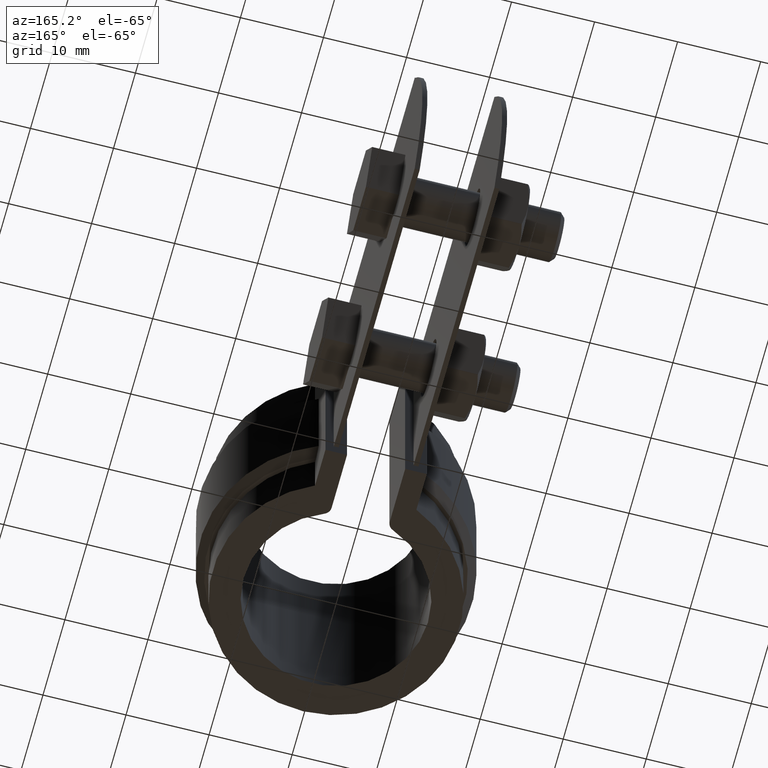
[diagram: clean part render]
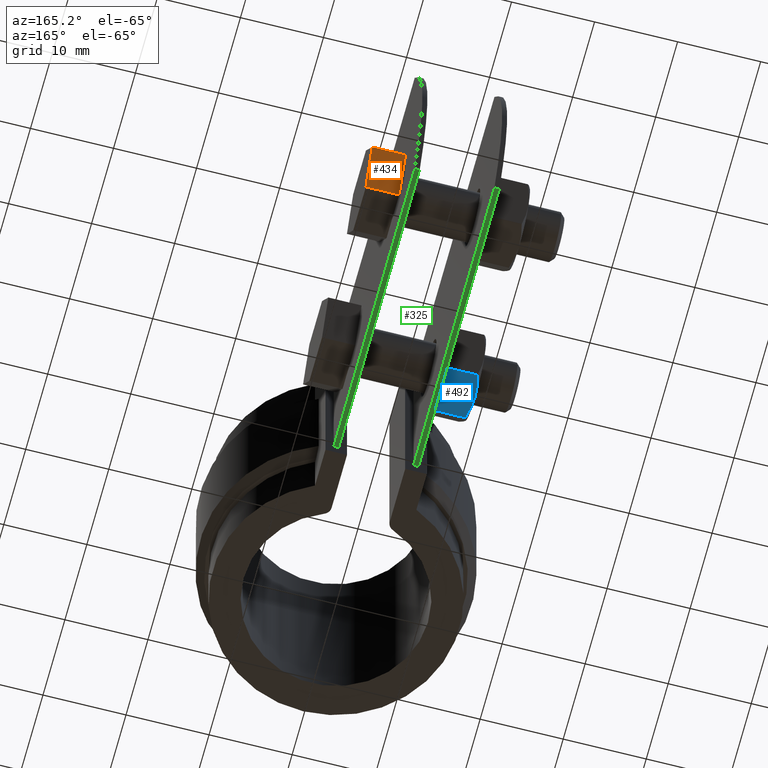
[diagram: same view with three faces highlighted in distinct colors, each labeled with its STEP entity id]
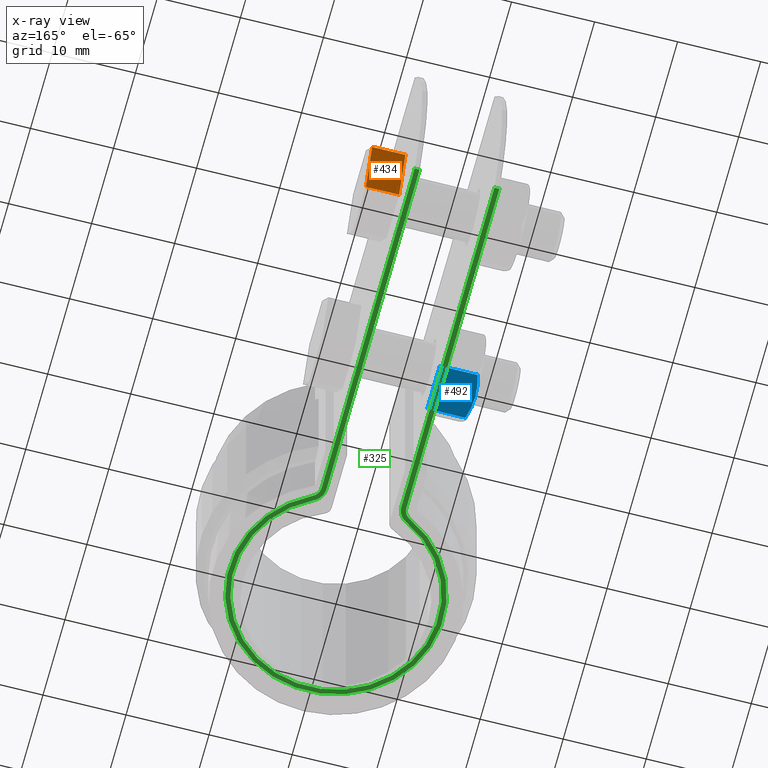
[diagram: x-ray of the same camera — body ghosted, the three highlighted faces saturated]
A machine part, auxiliary view with three faces highlighted in distinct colors.
The next image is the same camera in x-ray (body ghosted, the three faces saturated) — at least one of them is partly hidden behind the body in this view.
Their STEP definitions:

[orange] entity #434 — the highlighted planar face has unit normal (-0, -0.866, 0.5).
#434 = ADVANCED_FACE( '', ( #755 ), #756, .F. );
#755 = FACE_OUTER_BOUND( '', #1541, .T. );
#756 = PLANE( '', #1542 );
#1541 = EDGE_LOOP( '', ( #3654, #3655, #3656, #3657 ) );
#1542 = AXIS2_PLACEMENT_3D( '', #3658, #3659, #3660 );
#3654 = ORIENTED_EDGE( '', *, *, #4486, .T. );
#3655 = ORIENTED_EDGE( '', *, *, #4493, .F. );
#3656 = ORIENTED_EDGE( '', *, *, #4494, .F. );
#3657 = ORIENTED_EDGE( '', *, *, #4495, .T. );
#3658 = CARTESIAN_POINT( '', ( 9.10000000000012, 48.0847660081835, -17.5000000000001 ) );
#3659 = DIRECTION( '', ( -1.40129846432480E-045, -0.866025403784439, 0.500000000000000 ) );
#3660 = DIRECTION( '', ( -4.85493661350449E-060, -0.500000000000000, -0.866025403784438 ) );
#4486 = EDGE_CURVE( '', #5210, #5211, #5212, .T. );
#4493 = EDGE_CURVE( '', #5224, #5211, #5225, .T. );
#4494 = EDGE_CURVE( '', #5226, #5224, #5227, .T. );
#4495 = EDGE_CURVE( '', #5226, #5210, #5228, .T. );
#5210 = VERTEX_POINT( '', #7522 );
#5211 = VERTEX_POINT( '', #7523 );
#5212 = LINE( '', #7524, #7525 );
#5224 = VERTEX_POINT( '', #7542 );
#5225 = LINE( '', #7543, #7544 );
#5226 = VERTEX_POINT( '', #7545 );
#5227 = LINE( '', #7546, #7547 );
#5228 = LINE( '', #7548, #7549 );
#7522 = CARTESIAN_POINT( '', ( 5.10000000000000, 48.0847660081835, -17.5000000000001 ) );
#7523 = CARTESIAN_POINT( '', ( 5.10000000000000, 50.9715173541317, -12.4999999999999 ) );
#7524 = CARTESIAN_POINT( '', ( 5.10000000000000, 48.0847660081835, -17.5000000000001 ) );
#7525 = VECTOR( '', #8376, 1000.00000000001 );
#7542 = CARTESIAN_POINT( '', ( 9.10000000000012, 50.9715173541317, -12.4999999999999 ) );
#7543 = CARTESIAN_POINT( '', ( 9.10000000000012, 50.9715173541317, -12.4999999999999 ) );
#7544 = VECTOR( '', #8385, 1000.00000000000 );
#7545 = CARTESIAN_POINT( '', ( 9.10000000000012, 48.0847660081835, -17.5000000000001 ) );
#7546 = CARTESIAN_POINT( '', ( 9.10000000000012, 48.0847660081835, -17.5000000000001 ) );
#7547 = VECTOR( '', #8386, 1000.00000000001 );
#7548 = CARTESIAN_POINT( '', ( 9.10000000000012, 48.0847660081835, -17.5000000000001 ) );
#7549 = VECTOR( '', #8387, 1000.00000000000 );
#8376 = DIRECTION( '', ( 4.77714892253123E-060, 0.500000000000000, 0.866025403784438 ) );
#8385 = DIRECTION( '', ( -1.00000000000000, 1.21356006838940E-045, -7.00649232162396E-046 ) );
#8386 = DIRECTION( '', ( 4.77714892253123E-060, 0.500000000000000, 0.866025403784438 ) );
#8387 = DIRECTION( '', ( -1.00000000000000, 1.21356006838940E-045, -7.00649232162396E-046 ) );

[blue] entity #492 — the highlighted planar face has unit normal (0, 0, 1).
#492 = ADVANCED_FACE( '', ( #883 ), #884, .F. );
#883 = FACE_OUTER_BOUND( '', #1669, .T. );
#884 = PLANE( '', #1670 );
#1669 = EDGE_LOOP( '', ( #4081, #4082, #4083, #4084, #4085 ) );
#1670 = AXIS2_PLACEMENT_3D( '', #4086, #4087, #4088 );
#4081 = ORIENTED_EDGE( '', *, *, #4624, .F. );
#4082 = ORIENTED_EDGE( '', *, *, #4625, .F. );
#4083 = ORIENTED_EDGE( '', *, *, #4623, .F. );
#4084 = ORIENTED_EDGE( '', *, *, #4603, .F. );
#4085 = ORIENTED_EDGE( '', *, *, #4626, .F. );
#4086 = CARTESIAN_POINT( '', ( -5.10000000000001, 22.3112633162872, -17.5000000000000 ) );
#4087 = DIRECTION( '', ( 0.000000000000000, 0.000000000000000, 1.00000000000000 ) );
#4088 = DIRECTION( '', ( 1.00000000000000, 0.000000000000000, 0.000000000000000 ) );
#4603 = EDGE_CURVE( '', #5409, #5411, #5412, .T. );
#4623 = EDGE_CURVE( '', #5411, #5439, #5441, .F. );
#4624 = EDGE_CURVE( '', #5379, #5442, #5443, .F. );
#4625 = EDGE_CURVE( '', #5439, #5379, #5444, .F. );
#4626 = EDGE_CURVE( '', #5442, #5409, #5445, .T. );
#5379 = VERTEX_POINT( '', #7817 );
#5409 = VERTEX_POINT( '', #7862 );
#5411 = VERTEX_POINT( '', #7864 );
#5412 = LINE( '', #7865, #7866 );
#5439 = VERTEX_POINT( '', #7927 );
#5441 = LINE( '', #7929, #7930 );
#5442 = VERTEX_POINT( '', #7931 );
#5443 = B_SPLINE_CURVE_WITH_KNOTS( '', 3, ( #7932, #7933, #7934, #7935, #7936, #7937 ), .UNSPECIFIED., .F., .F., ( 4, 2, 4 ), ( 0.00519725619092114, 0.00663292719463914, 0.00806859819835714 ), .UNSPECIFIED. );
#5444 = B_SPLINE_CURVE_WITH_KNOTS( '', 3, ( #7938, #7939, #7940, #7941, #7942, #7943 ), .UNSPECIFIED., .F., .F., ( 4, 2, 4 ), ( 0.00806859819835714, 0.00950497228174471, 0.0109413463651323 ), .UNSPECIFIED. );
#5445 = LINE( '', #7944, #7945 );
#7817 = CARTESIAN_POINT( '', ( -10.1000000000000, 25.1980146622354, -17.5000000000000 ) );
#7862 = CARTESIAN_POINT( '', ( -5.10000000000001, 22.3585604893352, -17.5000000000000 ) );
#7864 = CARTESIAN_POINT( '', ( -5.10000000000001, 28.0374688351355, -17.5000000000000 ) );
#7865 = CARTESIAN_POINT( '', ( -5.10000000000001, 30.9480146622354, -17.5000000000000 ) );
#7866 = VECTOR( '', #8561, 1000.00000000000 );
#7927 = CARTESIAN_POINT( '', ( -9.66698729810779, 28.0374688351355, -17.5000000000000 ) );
#7929 = CARTESIAN_POINT( '', ( -5.10000000000001, 28.0374688351355, -17.5000000000000 ) );
#7930 = VECTOR( '', #8586, 1000.00000000000 );
#7931 = CARTESIAN_POINT( '', ( -9.66698729810779, 22.3585604893352, -17.5000000000000 ) );
#7932 = CARTESIAN_POINT( '', ( -9.66698729810781, 22.3585604893352, -17.5000000000000 ) );
#7933 = CARTESIAN_POINT( '', ( -9.79876289079437, 22.8207590475922, -17.5000000000000 ) );
#7934 = CARTESIAN_POINT( '', ( -9.90898038823822, 23.2938946967200, -17.5000000000000 ) );
#7935 = CARTESIAN_POINT( '', ( -10.0594851340825, 24.2418174733163, -17.5000000000000 ) );
#7936 = CARTESIAN_POINT( '', ( -10.1000000000000, 24.7183921243639, -17.5000000000000 ) );
#7937 = CARTESIAN_POINT( '', ( -10.1000000000000, 25.1980146622354, -17.5000000000000 ) );
#7938 = CARTESIAN_POINT( '', ( -10.1000000000000, 25.1980146622354, -17.5000000000000 ) );
#7939 = CARTESIAN_POINT( '', ( -10.1000000000000, 25.6778720818135, -17.5000000000000 ) );
#7940 = CARTESIAN_POINT( '', ( -10.0583898630217, 26.1642539003035, -17.5000000000000 ) );
#7941 = CARTESIAN_POINT( '', ( -9.90676947593068, 27.1128463258627, -17.5000000000000 ) );
#7942 = CARTESIAN_POINT( '', ( -9.79793774197779, 27.5781644592199, -17.5000000000000 ) );
#7943 = CARTESIAN_POINT( '', ( -9.66698729810780, 28.0374688351355, -17.5000000000000 ) );
#7944 = CARTESIAN_POINT( '', ( -5.10000000000001, 22.3585604893352, -17.5000000000000 ) );
#7945 = VECTOR( '', #8587, 1000.00000000000 );
#8561 = DIRECTION( '', ( 0.000000000000000, 1.00000000000000, 0.000000000000000 ) );
#8586 = DIRECTION( '', ( 1.00000000000000, 0.000000000000000, 0.000000000000000 ) );
#8587 = DIRECTION( '', ( 1.00000000000000, 0.000000000000000, 0.000000000000000 ) );

[green] entity #325 — the highlighted planar face has unit normal (0, 0, 1).
#325 = ADVANCED_FACE( '', ( #524 ), #525, .F. );
#524 = FACE_OUTER_BOUND( '', #974, .T. );
#525 = PLANE( '', #975 );
#974 = EDGE_LOOP( '', ( #2022, #2023, #2024, #2025, #2026, #2027, #2028, #2029, #2030, #2031, #2032, #2033 ) );
#975 = AXIS2_PLACEMENT_3D( '', #2034, #2035, #2036 );
#2022 = ORIENTED_EDGE( '', *, *, #4196, .F. );
#2023 = ORIENTED_EDGE( '', *, *, #4194, .F. );
#2024 = ORIENTED_EDGE( '', *, *, #4190, .F. );
#2025 = ORIENTED_EDGE( '', *, *, #4197, .F. );
#2026 = ORIENTED_EDGE( '', *, *, #4198, .F. );
#2027 = ORIENTED_EDGE( '', *, *, #4199, .F. );
#2028 = ORIENTED_EDGE( '', *, *, #4200, .F. );
#2029 = ORIENTED_EDGE( '', *, *, #4201, .T. );
#2030 = ORIENTED_EDGE( '', *, *, #4202, .T. );
#2031 = ORIENTED_EDGE( '', *, *, #4203, .T. );
#2032 = ORIENTED_EDGE( '', *, *, #4204, .T. );
#2033 = ORIENTED_EDGE( '', *, *, #4205, .T. );
#2034 = CARTESIAN_POINT( '', ( -4.50000000000000, 58.6980146622353, -25.0000000000000 ) );
#2035 = DIRECTION( '', ( 0.000000000000000, 0.000000000000000, 1.00000000000000 ) );
#2036 = DIRECTION( '', ( -6.12303176911189E-017, -1.00000000000000, 0.000000000000000 ) );
#4190 = EDGE_CURVE( '', #4724, #4726, #4727, .T. );
#4194 = EDGE_CURVE( '', #4726, #4733, #4734, .T. );
#4196 = EDGE_CURVE( '', #4733, #4736, #4737, .F. );
#4197 = EDGE_CURVE( '', #4738, #4724, #4739, .F. );
#4198 = EDGE_CURVE( '', #4740, #4738, #4741, .T. );
#4199 = EDGE_CURVE( '', #4742, #4740, #4743, .T. );
#4200 = EDGE_CURVE( '', #4744, #4742, #4745, .F. );
#4201 = EDGE_CURVE( '', #4744, #4746, #4747, .T. );
#4202 = EDGE_CURVE( '', #4746, #4748, #4749, .T. );
#4203 = EDGE_CURVE( '', #4748, #4750, #4751, .T. );
#4204 = EDGE_CURVE( '', #4750, #4752, #4753, .T. );
#4205 = EDGE_CURVE( '', #4752, #4736, #4754, .T. );
#4724 = VERTEX_POINT( '', #5894 );
#4726 = VERTEX_POINT( '', #5897 );
#4727 = CIRCLE( '', #5898, 1.40000000000000 );
#4733 = VERTEX_POINT( '', #5905 );
#4734 = LINE( '', #5906, #5907 );
#4736 = VERTEX_POINT( '', #5909 );
#4737 = LINE( '', #5910, #5911 );
#4738 = VERTEX_POINT( '', #5912 );
#4739 = CIRCLE( '', #5913, 12.9100000000000 );
#4740 = VERTEX_POINT( '', #5914 );
#4741 = CIRCLE( '', #5915, 1.40000000000000 );
#4742 = VERTEX_POINT( '', #5916 );
#4743 = LINE( '', #5917, #5918 );
#4744 = VERTEX_POINT( '', #5919 );
#4745 = LINE( '', #5920, #5921 );
#4746 = VERTEX_POINT( '', #5922 );
#4747 = LINE( '', #5923, #5924 );
#4748 = VERTEX_POINT( '', #5925 );
#4749 = CIRCLE( '', #5926, 2.00000000000000 );
#4750 = VERTEX_POINT( '', #5927 );
#4751 = CIRCLE( '', #5928, 12.3100000000000 );
#4752 = VERTEX_POINT( '', #5929 );
#4753 = CIRCLE( '', #5930, 2.00000000000000 );
#4754 = LINE( '', #5931, #5932 );
#5894 = CARTESIAN_POINT( '', ( 5.86408106219426, 11.5013326747823, -25.0000000000000 ) );
#5897 = CARTESIAN_POINT( '', ( 5.10000000000000, 12.7485724691042, -25.0000000000000 ) );
#5898 = AXIS2_PLACEMENT_3D( '', #8004, #8005, #8006 );
#5905 = CARTESIAN_POINT( '', ( 5.10000000000001, 55.1858159107832, -25.0000000000000 ) );
#5906 = CARTESIAN_POINT( '', ( 5.10000000000000, 12.7485724691042, -25.0000000000000 ) );
#5907 = VECTOR( '', #8014, 1000.00000000000 );
#5909 = CARTESIAN_POINT( '', ( 4.50000000000000, 55.1858159107832, -25.0000000000000 ) );
#5910 = CARTESIAN_POINT( '', ( -68.6550573673119, 55.1858159107832, -25.0000000000000 ) );
#5911 = VECTOR( '', #8018, 1000.00000000000 );
#5912 = CARTESIAN_POINT( '', ( -5.86408106219428, 11.5013326747823, -25.0000000000000 ) );
#5913 = AXIS2_PLACEMENT_3D( '', #8019, #8020, #8021 );
#5914 = CARTESIAN_POINT( '', ( -5.10000000000000, 12.7485724691042, -25.0000000000000 ) );
#5915 = AXIS2_PLACEMENT_3D( '', #8022, #8023, #8024 );
#5916 = CARTESIAN_POINT( '', ( -5.09999999999999, 55.1858159107832, -25.0000000000000 ) );
#5917 = CARTESIAN_POINT( '', ( -5.10000000000000, 58.6980146622353, -25.0000000000000 ) );
#5918 = VECTOR( '', #8025, 1000.00000000000 );
#5919 = CARTESIAN_POINT( '', ( -4.50000000000000, 55.1858159107832, -25.0000000000000 ) );
#5920 = CARTESIAN_POINT( '', ( -68.6550573673119, 55.1858159107832, -25.0000000000000 ) );
#5921 = VECTOR( '', #8026, 1000.00000000000 );
#5922 = CARTESIAN_POINT( '', ( -4.50000000000000, 12.7485724691042, -25.0000000000000 ) );
#5923 = CARTESIAN_POINT( '', ( -4.50000000000000, 58.6980146622353, -25.0000000000000 ) );
#5924 = VECTOR( '', #8027, 1000.00000000000 );
#5925 = CARTESIAN_POINT( '', ( -5.59154437456325, 10.9668013343586, -25.0000000000000 ) );
#5926 = AXIS2_PLACEMENT_3D( '', #8028, #8029, #8030 );
#5927 = CARTESIAN_POINT( '', ( 5.59154437456324, 10.9668013343586, -25.0000000000000 ) );
#5928 = AXIS2_PLACEMENT_3D( '', #8031, #8032, #8033 );
#5929 = CARTESIAN_POINT( '', ( 4.50000000000000, 12.7485724691042, -25.0000000000000 ) );
#5930 = AXIS2_PLACEMENT_3D( '', #8034, #8035, #8036 );
#5931 = CARTESIAN_POINT( '', ( 4.50000000000000, 12.7485724691042, -25.0000000000000 ) );
#5932 = VECTOR( '', #8037, 1000.00000000000 );
#8004 = CARTESIAN_POINT( '', ( 6.50000000000000, 12.7485724691042, -25.0000000000000 ) );
#8005 = DIRECTION( '', ( 0.000000000000000, 0.000000000000000, -1.00000000000000 ) );
#8006 = DIRECTION( '', ( -1.00000000000000, 0.000000000000000, 0.000000000000000 ) );
#8014 = DIRECTION( '', ( 6.12303176911189E-017, 1.00000000000000, 0.000000000000000 ) );
#8018 = DIRECTION( '', ( 1.00000000000000, -6.12303176911189E-017, 6.16297582203916E-033 ) );
#8019 = CARTESIAN_POINT( '', ( 0.000000000000000, 0.000000000000000, -25.0000000000000 ) );
#8020 = DIRECTION( '', ( 0.000000000000000, 0.000000000000000, -1.00000000000000 ) );
#8021 = DIRECTION( '', ( -1.00000000000000, 0.000000000000000, 0.000000000000000 ) );
#8022 = CARTESIAN_POINT( '', ( -6.50000000000000, 12.7485724691042, -25.0000000000000 ) );
#8023 = DIRECTION( '', ( 0.000000000000000, 0.000000000000000, -1.00000000000000 ) );
#8024 = DIRECTION( '', ( -1.00000000000000, 0.000000000000000, 0.000000000000000 ) );
#8025 = DIRECTION( '', ( -6.12303176911189E-017, -1.00000000000000, 0.000000000000000 ) );
#8026 = DIRECTION( '', ( 1.00000000000000, -6.12303176911189E-017, 6.16297582203916E-033 ) );
#8027 = DIRECTION( '', ( -6.12303176911189E-017, -1.00000000000000, 0.000000000000000 ) );
#8028 = CARTESIAN_POINT( '', ( -6.50000000000000, 12.7485724691042, -25.0000000000000 ) );
#8029 = DIRECTION( '', ( 0.000000000000000, 0.000000000000000, -1.00000000000000 ) );
#8030 = DIRECTION( '', ( 1.00000000000000, -6.12303176911189E-017, 0.000000000000000 ) );
#8031 = CARTESIAN_POINT( '', ( 0.000000000000000, 0.000000000000000, -25.0000000000000 ) );
#8032 = DIRECTION( '', ( 0.000000000000000, 0.000000000000000, 1.00000000000000 ) );
#8033 = DIRECTION( '', ( 1.00000000000000, -6.12303176911189E-017, 0.000000000000000 ) );
#8034 = CARTESIAN_POINT( '', ( 6.50000000000000, 12.7485724691042, -25.0000000000000 ) );
#8035 = DIRECTION( '', ( 0.000000000000000, 0.000000000000000, -1.00000000000000 ) );
#8036 = DIRECTION( '', ( -1.00000000000000, 6.12303176911189E-017, 0.000000000000000 ) );
#8037 = DIRECTION( '', ( 6.12303176911189E-017, 1.00000000000000, 0.000000000000000 ) );